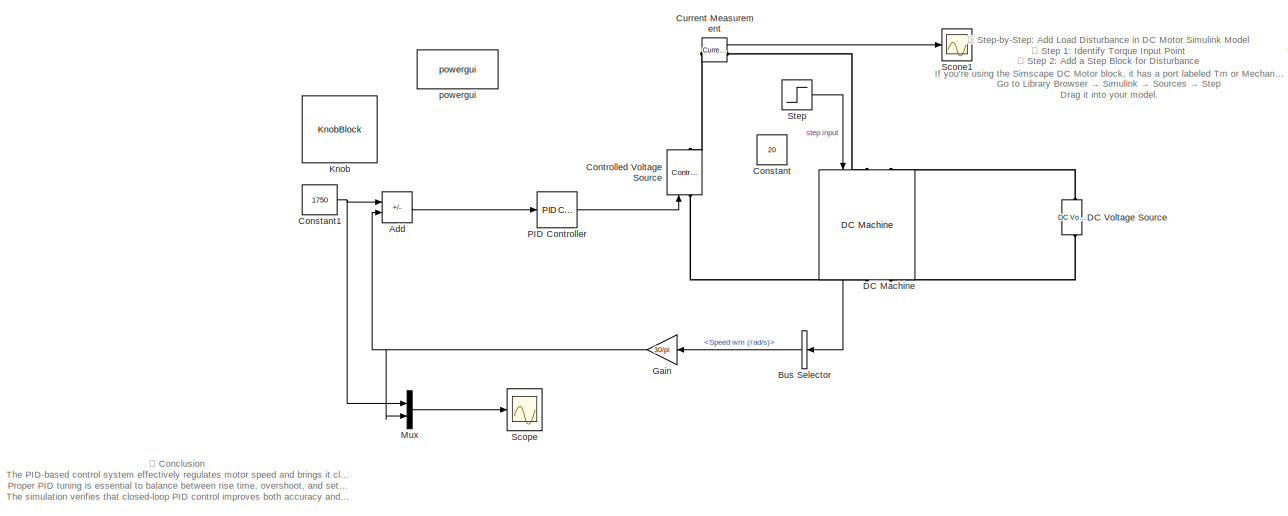
[diagram: root canvas - part 1/3, center side, full height]
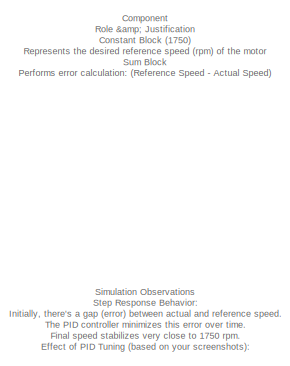
[diagram: root canvas - part 2/3, middle left region]
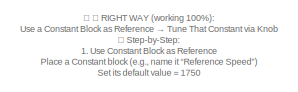
[diagram: root canvas - part 3/3, top right region]
MODEL slx_6527f5dbb1b4
KIND model
CONFIG AbsTol = auto
CONFIG EnableMultiTasking = off
CONFIG FixedStep = auto
CONFIG MaxStep = auto
CONFIG MinStep = auto
CONFIG RelTol = 1e-3
CONFIG SampleTimeConstraint = Unconstrained
CONFIG SolverName = VariableStepAuto
CONFIG StartTime = 0.0
CONFIG StopTime = 10.0
BLOCK [Sum] Add
  IconShape = rectangular
  Inputs = +-
BLOCK [BusSelector] Bus Selector
  OutputSignals = Speed wm (rad/s)
BLOCK [Constant] Constant
  Value = 20
BLOCK [Constant] Constant1
  Value = 1750
BLOCK [Reference] Controlled Voltage Source  REF=spsControlledVoltageSourceLib/Controlled Voltage Source
  LibrarySourceBlock = sps_lib/Sources/Controlled Voltage Source
  SourceBlock = spsControlledVoltageSourceLib/Controlled Voltage Source
  SourceType = Controlled Voltage Source
BLOCK [Reference] Current Measurement  REF=spsCurrentMeasurementLib/Current Measurement
  LibrarySourceBlock = sps_lib/Sensors and Measurements/Current Measurement
  SourceBlock = spsCurrentMeasurementLib/Current Measurement
  SourceType = Current Measurement
  UserDataPersistent = on
BLOCK [Reference] DC Machine  REF=spsDCMachineLib/DC Machine
  LibrarySourceBlock = sps_lib/Electrical Machines/DC Machine
  NameLocation = right
  SourceBlock = spsDCMachineLib/DC Machine
  SourceType = DC machine
BLOCK [Reference] DC Voltage Source  REF=spsDCVoltageSourceLib/DC Voltage Source
  LibrarySourceBlock = sps_lib/Sources/DC Voltage Source
  SourceBlock = spsDCVoltageSourceLib/DC Voltage Source
  SourceType = DC Voltage Source
BLOCK [Gain] Gain
  Gain = 30/pi
BLOCK [KnobBlock] Knob
  ScaleMax = 3000
BLOCK [Mux] Mux
  DisplayOption = bar
  Inputs = 2
BLOCK [Reference] PID Controller  REF=slpidlib/PID Controller
  LibrarySourceBlock = simulink/Continuous/PID Controller
  SourceBlock = slpidlib/PID Controller
  SourceType = PID 1dof
BLOCK [Scope] Scope
  Floating = off
  NumInputPorts = 1
  ScopeSpecificationString = Simulink.scopes.TimeScopeBlockCfg('CurrentConfiguration', extmgr.ConfigurationSet(extmgr.Configuration('Core','General UI',true),extmgr.Configuration('Core','Source UI',true),extmgr.Configuration('Sources','WiredSimulink',true),extmgr.Configuration('Visuals','Time Domain',true,'SerializedDisplays',{struct('MinYLimReal','835.54364','MaxYLimReal','1379.56727','YLabelReal','Speed','MinYLimMag','835.5...<+1684ch>
BLOCK [Scope] Scope1
  Floating = off
  NumInputPorts = 1
  ScopeSpecificationString = Simulink.scopes.TimeScopeBlockCfg('CurrentConfiguration', extmgr.ConfigurationSet(extmgr.Configuration('Core','General UI',true),extmgr.Configuration('Core','Source UI',true),extmgr.Configuration('Sources','WiredSimulink',true,'DataLoggingVariableName','ScopeData1'),extmgr.Configuration('Visuals','Time Domain',true,'SerializedDisplays',{struct('MinYLimReal','-45.98453','MaxYLimReal','282.66757','Y...<+1519ch>
BLOCK [Step] Step
  After = 2
  SampleTime = 0
  Time = 3
BLOCK [Reference] powergui  REF=spspowerguiLib/powergui
  LibrarySourceBlock = sps_lib/powergui
  Priority = 1
  SourceBlock = spspowerguiLib/powergui
  SourceType = PSB option menu block
ANNOTATION (root): Simulation Observations Step Response Behavior: Initially, there's a gap (error) between actual and reference speed. The PID controller minimizes this error over time. Final speed stabilizes very close to 1750 rpm. Effect of PID Tuning (based on your screenshots): First: Overdamped system (slow, steady rise). Second: Slight overshoot and faster settling (better tuned). Third: Visible oscillations ...<+46ch>
ANNOTATION (root): 🧠 Conclusion The PID-based control system effectively regulates motor speed and brings it close to the reference. Proper PID tuning is essential to balance between rise time, overshoot , and settling time . The simulation verifies that closed-loop PID control improves both accuracy and stability compared to open-loop.
ANNOTATION (root): 🧭 Step-by-Step: Add Load Disturbance in DC Motor Simulink Model ✅ Step 1: Identify Torque Input Point If you're using the Simscape DC Motor block , it has a port labeled Tm or Mechanical Torque Input . ✅ Step 2: Add a Step Block for Disturbance Go to Library Browser → Simulink → Sources → Step Drag it into your model. ✅ Step 3: Configure the Step Block Double-click and set: Step time = 3 (means lo...<+623ch>
ANNOTATION (root): Component Role & Justification Constant Block (1750) Represents the desired reference speed (rpm) of the motor Sum Block Performs error calculation : (Reference Speed - Actual Speed) PID Controller Block Calculates appropriate control signal based on error using Proportional + Integral + Derivative actions Controlled Voltage Source Converts controller output into a driving voltage for the motor DC...<+344ch>
ANNOTATION (root): ✅ ✅ RIGHT WAY (working 100%): Use a Constant Block as Reference → Tune That Constant via Knob 🧭 Step-by-Step: 1. Use Constant Block as Reference Place a Constant block (e.g., name it “Reference Speed”) Set its default value = 1750 Connect this to the “+” input of Sum (just like before) 2. Add Dashboard Knob Go to: Simulink → Dashboard → Drag Knob Place it on the canvas (not inside subsystem) 3. St...<+576ch>
LINE Add:1 -> PID Controller:1
LINE Bus Selector:1 -> Gain:1
NET Constant1:1 -> Add:1, Mux:1
LINE Current Measurement:1 -> Scope1:1
LINE DC Machine:1 -> Bus Selector:1
NET Gain:1 -> Add:2, Mux:2
LINE Mux:1 -> Scope:1
LINE PID Controller:1 -> Controlled Voltage Source:1
LINE Step:1 -> DC Machine:1
PLINE Controlled Voltage Source:LConn1 -- DC Machine:RConn1
PLINE Controlled Voltage Source:RConn1 -- Current Measurement:LConn1
PLINE Current Measurement:RConn1 -- DC Machine:LConn1
PLINE DC Machine:LConn2 -- DC Voltage Source:RConn1
PLINE DC Machine:RConn2 -- DC Voltage Source:LConn1
note: NET lines group one-source signal fan-out (src -> all destinations, sorted); 1:1 wires keep LINE
